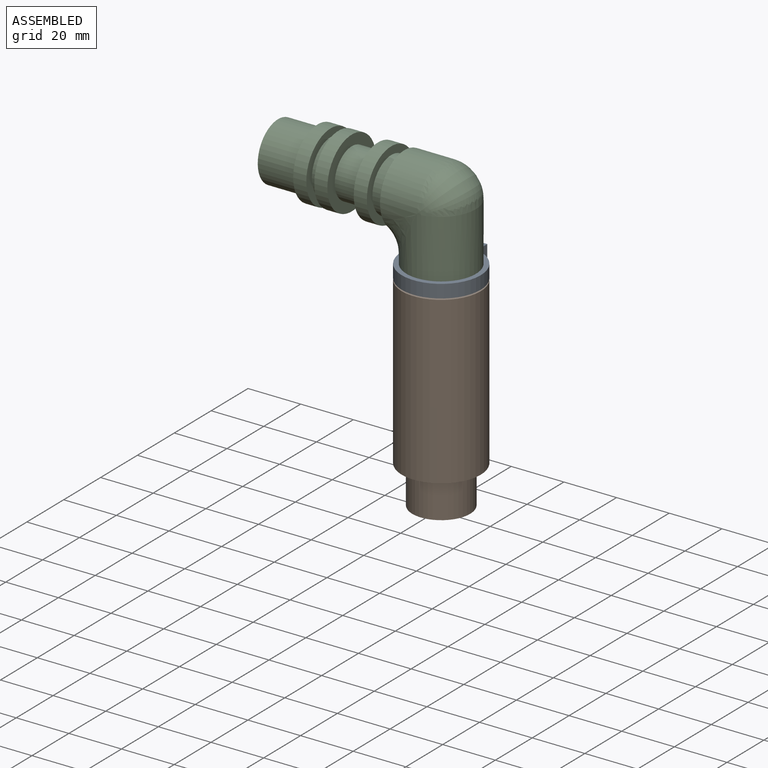
[diagram: assembled view]
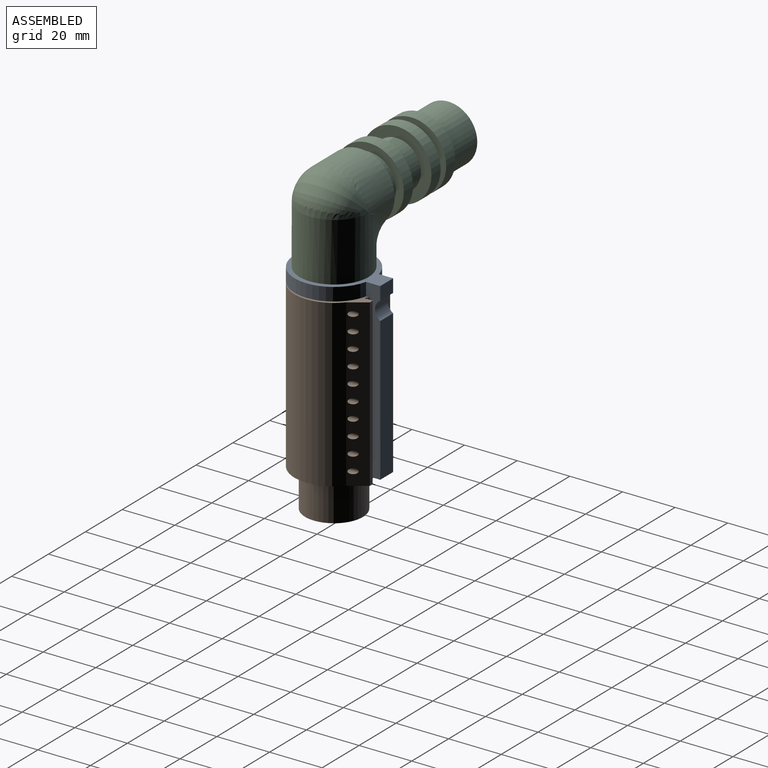
[diagram: assembled view, second angle]
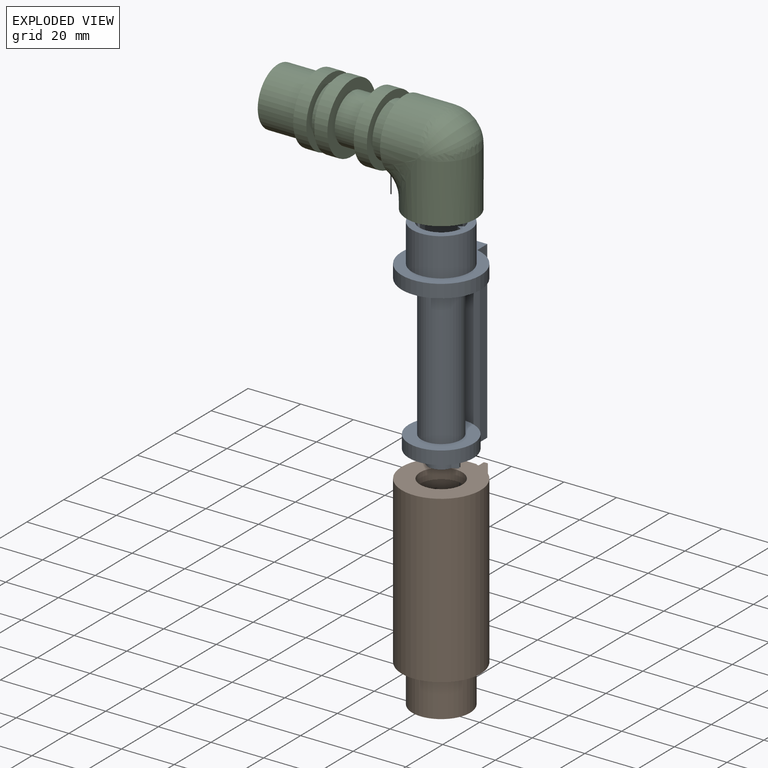
[diagram: exploded view]
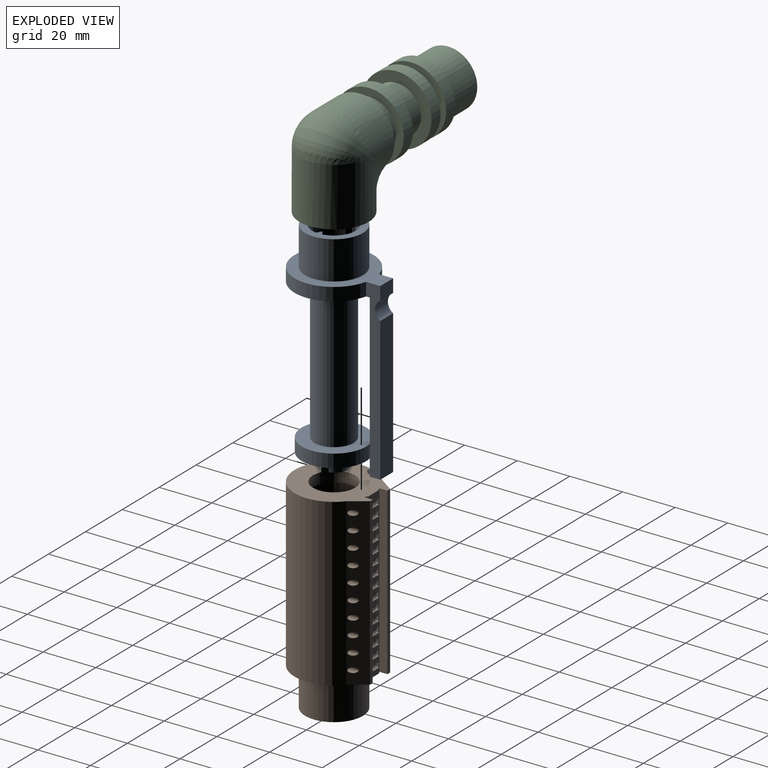
[diagram: exploded view, second angle]
ASSEMBLY  parts=3 mates=2
PART A: 38 faces, bbox 30x35x83 mm
  f0: plane 16.5x16.35mm, normal (0,0,1), area 130.8mm2, adj f20,f30,f31,f32,f33,f34,f35
  f1: plane 54.5x7mm, normal (0,1,0), area 381.5mm2, adj f2,f3,f22,f29
  f2: plane 66.5x5.41mm, normal (-1,0,0), area 263.2mm2, adj f1,f4,f5,f6,f18,f21,f22,f29
  f3: plane 66.5x5.41mm, normal (1,0,0), area 263.2mm2, adj f1,f4,f5,f6,f18,f21,f22,f29
  f4: plane 61.5x7mm, normal (0,-1,0), area 416.5mm2, adj f2,f3,f5,f22,f23,f26,f27
  f5: plane 31x30mm, normal (0,0,-1), area 538.1mm2, adj f2,f3,f4,f6,f17
  f6: cylinder r=15mm len=30mm, axis (0,0,-1), area 435.9mm2, adj f2,f3,f5,f18
  f7: cylinder r=4.88mm len=9.42mm, axis (0,0,-1), area 63.9mm2, adj f8,f12,f13,f14
  f8: plane 5x2.16mm, normal (-0.5,0.87,0), area 12.5mm2, adj f7,f9,f13,f14
  f9: plane 5x2.16mm, normal (-0.5,-0.87,0), area 12.5mm2, adj f8,f10,f13,f14
  f10: cylinder r=4.88mm len=9.42mm, axis (0,0,-1), area 63.9mm2, adj f9,f11,f13,f14
  f11: plane 5x2.16mm, normal (0.5,-0.87,0), area 12.5mm2, adj f10,f12,f13,f14
  f12: plane 5x2.16mm, normal (0.5,0.87,0), area 12.5mm2, adj f7,f11,f13,f14
  f13: plane 13.75x9.75mm, normal (0,0,-1), area 63.6mm2, adj f7,f8,f9,f10,f11,f12,f28
  f14: plane 24.5x24.5mm, normal (0,0,-1), area 391.9mm2, adj f7,f8,f9,f10,f11,f12,f15
  f15: cylinder r=12.25mm len=24.5mm, axis (0,0,-1), area 384.8mm2, adj f14,f16
  f16: plane 24.5x24.5mm, normal (0,0,1), area 294.7mm2, adj f15,f17
  f17: cylinder r=7.5mm len=53.5mm, axis (0,0,-1), area 2521.1mm2, adj f5,f16
  f18: plane 35x30mm, normal (0,0,1), area 362.7mm2, adj f2,f3,f6,f21,f36
  f19: plane 10x10mm, normal (0,0,1), area 62.6mm2, adj f20,f28
  f20: cylinder r=5mm len=58.5mm, axis (0,0,-1), area 1837.8mm2, adj f0,f19
  f21: plane 7x5mm, normal (0,1,0), area 35mm2, adj f2,f3,f18,f29
  f22: plane 7x4mm, normal (0,0,-1), area 28mm2, adj f1,f2,f3,f4,f25
  f23: plane 5x1mm, normal (0,-0.74,0.67), area 6.7mm2, adj f4,f24,f26,f27
  f24: extruded ~5x1.6mm, area 12.6mm2, adj f23,f25,f26,f27
  f25: plane 5x0.9mm, normal (0,-0.22,-0.98), area 4.6mm2, adj f22,f24,f26,f27
  f26: plane 2.8x1.94mm, normal (1,0,0), area 3mm2, adj f4,f23,f24,f25
  f27: plane 2.8x1.94mm, normal (-1,0,0), area 3mm2, adj f4,f23,f24,f25
  f28: cylinder r=2.25mm len=10mm, axis (0,0,1), area 141.4mm2, adj f13,f19
  f29: cylinder r=4.06mm len=7mm, axis (-1,0,0), area 59.1mm2, adj f1,f2,f3,f21
  f30: plane 14.5x1.93mm, normal (0.5,0.87,0), area 32.2mm2, adj f0,f31,f35,f37
  f31: cylinder r=8.25mm len=16.35mm, axis (0,0,-1), area 343.5mm2, adj f0,f30,f32,f37
  f32: plane 14.5x1.93mm, normal (-0.5,0.87,0), area 32.2mm2, adj f0,f31,f33,f37
  f33: plane 14.5x1.93mm, normal (-0.5,-0.87,0), area 32.2mm2, adj f0,f32,f34,f37
  f34: cylinder r=8.25mm len=16.35mm, axis (0,0,-1), area 343.5mm2, adj f0,f33,f35,f37
  f35: plane 14.5x1.93mm, normal (0.5,-0.87,0), area 32.2mm2, adj f0,f30,f34,f37
  f36: cylinder r=11mm len=22mm, axis (0,0,-1), area 1002.2mm2, adj f18,f37
  f37: plane 22x22mm, normal (0,0,1), area 170.8mm2, adj f30,f31,f32,f33,f34,f35,f36
PART B: 146 faces, bbox 30.6x33.1x78.1 mm
  f0: plane 16.25x7.97mm, normal (0,0,-1), area 61.9mm2, adj f55,f56,f57,f118,f119,f120
  f1: plane 16.25x7.97mm, normal (0,0,-1), area 61.9mm2, adj f54,f58,f59,f116,f117,f121
  f2: cylinder r=15mm len=63mm, axis (0,0,-1), area 4603.7mm2, adj f60,f61,f111,f115
  f3: cylinder r=15mm len=63mm, axis (0,0,-1), area 64.8mm2, adj f35,f36,f37,f38,f39,f40,f41,f42
  f4: plane 6x2mm, normal (0,1,0), area 12mm2, adj f20,f35,f60,f109
  f5: plane 6x2mm, normal (0,1,0), area 12mm2, adj f19,f36,f106,f109
  f6: plane 6x2mm, normal (0,1,0), area 12mm2, adj f21,f37,f103,f106
  f7: plane 6x2mm, normal (0,1,0), area 12mm2, adj f22,f38,f100,f103
  f8: plane 6x2mm, normal (0,1,0), area 12mm2, adj f23,f39,f97,f100
  f9: plane 6x2mm, normal (0,1,0), area 12mm2, adj f24,f40,f94,f97
  f10: plane 6x2mm, normal (0,1,0), area 12mm2, adj f25,f41,f91,f94
  f11: plane 6x2mm, normal (0,1,0), area 12mm2, adj f26,f42,f88,f91
  f12: plane 6x2mm, normal (0,1,0), area 12mm2, adj f27,f43,f85,f88
  f13: plane 6x2mm, normal (0,1,0), area 12mm2, adj f28,f44,f82,f85
  f14: plane 6x2mm, normal (0,1,0), area 12mm2, adj f29,f45,f79,f82
  f15: plane 6x2mm, normal (0,1,0), area 12mm2, adj f30,f46,f76,f79
  f16: plane 6x2mm, normal (0,1,0), area 12mm2, adj f31,f47,f73,f76
  f17: plane 6x2mm, normal (0,1,0), area 12mm2, adj f32,f48,f70,f73
  f18: plane 6x2mm, normal (0,1,0), area 12mm2, adj f33,f49,f67,f70
  f19: plane 2.09x0.3mm, normal (1,0,0), area 0.6mm2, adj f5,f51,f106,f109
  f20: plane 2.05x0.3mm, normal (1,0,0), area 0.6mm2, adj f4,f51,f60,f109
  f21: plane 2.09x0.3mm, normal (1,0,0), area 0.6mm2, adj f6,f51,f103,f106
  f22: plane 2.09x0.3mm, normal (1,0,0), area 0.6mm2, adj f7,f51,f100,f103
  f23: plane 2.09x0.3mm, normal (1,0,0), area 0.6mm2, adj f8,f51,f97,f100
  f24: plane 2.09x0.3mm, normal (1,0,0), area 0.6mm2, adj f9,f51,f94,f97
  f25: plane 2.09x0.3mm, normal (1,0,0), area 0.6mm2, adj f10,f51,f91,f94
  f26: plane 2.09x0.3mm, normal (1,0,0), area 0.6mm2, adj f11,f51,f88,f91
  f27: plane 2.09x0.3mm, normal (1,0,0), area 0.6mm2, adj f12,f51,f85,f88
  f28: plane 2.09x0.3mm, normal (1,0,0), area 0.6mm2, adj f13,f51,f82,f85
  f29: plane 2.09x0.3mm, normal (1,0,0), area 0.6mm2, adj f14,f51,f79,f82
  f30: plane 2.09x0.3mm, normal (1,0,0), area 0.6mm2, adj f15,f51,f76,f79
  f31: plane 2.09x0.3mm, normal (1,0,0), area 0.6mm2, adj f16,f51,f73,f76
  f32: plane 2.09x0.3mm, normal (1,0,0), area 0.6mm2, adj f17,f51,f70,f73
  f33: plane 2.09x0.3mm, normal (1,0,0), area 0.6mm2, adj f18,f51,f67,f70
  f34: plane 3.05x0.3mm, normal (1,0,0), area 0.9mm2, adj f51,f61,f64,f67
  f35: plane 2.05x0.3mm, normal (-1,0,0), area 0.6mm2, adj f3,f4,f60,f109
  f36: plane 2.09x0.3mm, normal (-1,0,0), area 0.6mm2, adj f3,f5,f106,f109
  f37: plane 2.09x0.3mm, normal (-1,0,0), area 0.6mm2, adj f3,f6,f103,f106
  f38: plane 2.09x0.3mm, normal (-1,0,0), area 0.6mm2, adj f3,f7,f100,f103
  f39: plane 2.09x0.3mm, normal (-1,0,0), area 0.6mm2, adj f3,f8,f97,f100
  f40: plane 2.09x0.3mm, normal (-1,0,0), area 0.6mm2, adj f3,f9,f94,f97
  f41: plane 2.09x0.3mm, normal (-1,0,0), area 0.6mm2, adj f3,f10,f91,f94
  f42: plane 2.09x0.3mm, normal (-1,0,0), area 0.6mm2, adj f3,f11,f88,f91
  f43: plane 2.09x0.3mm, normal (-1,0,0), area 0.6mm2, adj f3,f12,f85,f88
  f44: plane 2.09x0.3mm, normal (-1,0,0), area 0.6mm2, adj f3,f13,f82,f85
  f45: plane 2.09x0.3mm, normal (-1,0,0), area 0.6mm2, adj f3,f14,f79,f82
  f46: plane 2.09x0.3mm, normal (-1,0,0), area 0.6mm2, adj f3,f15,f76,f79
  f47: plane 2.09x0.3mm, normal (-1,0,0), area 0.6mm2, adj f3,f16,f73,f76
  f48: plane 2.09x0.3mm, normal (-1,0,0), area 0.6mm2, adj f3,f17,f70,f73
  f49: plane 2.09x0.3mm, normal (-1,0,0), area 0.6mm2, adj f3,f18,f67,f70
  f50: plane 3.05x0.3mm, normal (-1,0,0), area 0.9mm2, adj f3,f61,f64,f67
  f51: cylinder r=15mm len=63mm, axis (0,0,-1), area 64.8mm2, adj f19,f20,f21,f22,f23,f24,f25,f26
  f52: cylinder r=12.5mm len=56mm, axis (0,0,-1), area 4316.5mm2, adj f53,f63,f125,f126,f127,f128,f129,f130
  f53: plane 25x25mm, normal (0,0,1), area 407.5mm2, adj f52,f54,f55,f56,f57,f58,f59
  f54: plane 17.5x2.16mm, normal (-0.5,-0.87,0), area 14.2mm2, adj f1,f53,f55,f59,f121,f123
  f55: plane 17.5x2.16mm, normal (-0.5,0.87,0), area 14.2mm2, adj f0,f53,f54,f56,f120,f123
  f56: cylinder r=5mm len=9.68mm, axis (0,0,-1), area 39.6mm2, adj f0,f53,f55,f57
  f57: plane 17.5x2.16mm, normal (0.5,0.87,0), area 14.2mm2, adj f0,f53,f56,f58,f118,f123
  f58: plane 17.5x2.16mm, normal (0.5,-0.87,0), area 14.2mm2, adj f1,f53,f57,f59,f117,f123
  f59: cylinder r=5mm len=9.68mm, axis (0,0,-1), area 39.6mm2, adj f1,f53,f54,f58
  f60: plane 32.46x30mm, normal (0,0,-1), area 350.5mm2, adj f2,f3,f4,f20,f35,f51,f110,f111
  f61: plane 32.46x30mm, normal (0,0,1), area 529.6mm2, adj f2,f3,f34,f50,f51,f62,f64,f110
  f62: cylinder r=8mm len=16mm, axis (0,0,1), area 201.1mm2, adj f61,f63
  f63: plane 25x25mm, normal (0,0,-1), area 289.8mm2, adj f52,f62,f124,f136
  f64: plane 6x3mm, normal (0,1,0), area 18mm2, adj f34,f50,f61,f67
  f65: plane 1.91x0.7mm, normal (-1,0,0), area 1mm2, adj f51,f67
  f66: plane 1.91x0.7mm, normal (1,0,0), area 1mm2, adj f3,f67
  f67: cylinder r=1mm len=6mm, axis (-1,0,0), area 18.8mm2, adj f18,f33,f34,f49,f50,f64,f65,f66
  f68: plane 1.91x0.7mm, normal (-1,0,0), area 1mm2, adj f51,f70
  f69: plane 1.91x0.7mm, normal (1,0,0), area 1mm2, adj f3,f70
  f70: cylinder r=1mm len=6mm, axis (-1,0,0), area 18.8mm2, adj f17,f18,f32,f33,f48,f49,f68,f69
  f71: plane 1.91x0.7mm, normal (-1,0,0), area 1mm2, adj f51,f73
  f72: plane 1.91x0.7mm, normal (1,0,0), area 1mm2, adj f3,f73
  f73: cylinder r=1mm len=6mm, axis (-1,0,0), area 18.8mm2, adj f16,f17,f31,f32,f47,f48,f71,f72
  f74: plane 1.91x0.7mm, normal (-1,0,0), area 1mm2, adj f51,f76
  f75: plane 1.91x0.7mm, normal (1,0,0), area 1mm2, adj f3,f76
  f76: cylinder r=1mm len=6mm, axis (-1,0,0), area 18.8mm2, adj f15,f16,f30,f31,f46,f47,f74,f75
  f77: plane 1.91x0.7mm, normal (-1,0,0), area 1mm2, adj f51,f79
  f78: plane 1.91x0.7mm, normal (1,0,0), area 1mm2, adj f3,f79
  f79: cylinder r=1mm len=6mm, axis (-1,0,0), area 18.8mm2, adj f14,f15,f29,f30,f45,f46,f77,f78
  f80: plane 1.91x0.7mm, normal (-1,0,0), area 1mm2, adj f51,f82
  f81: plane 1.91x0.7mm, normal (1,0,0), area 1mm2, adj f3,f82
  f82: cylinder r=1mm len=6mm, axis (-1,0,0), area 18.8mm2, adj f13,f14,f28,f29,f44,f45,f80,f81
  f83: plane 1.91x0.7mm, normal (-1,0,0), area 1mm2, adj f51,f85
  f84: plane 1.91x0.7mm, normal (1,0,0), area 1mm2, adj f3,f85
  f85: cylinder r=1mm len=6mm, axis (-1,0,0), area 18.8mm2, adj f12,f13,f27,f28,f43,f44,f83,f84
  f86: plane 1.91x0.7mm, normal (-1,0,0), area 1mm2, adj f51,f88
  f87: plane 1.91x0.7mm, normal (1,0,0), area 1mm2, adj f3,f88
  f88: cylinder r=1mm len=6mm, axis (-1,0,0), area 18.8mm2, adj f11,f12,f26,f27,f42,f43,f86,f87
  f89: plane 1.91x0.7mm, normal (-1,0,0), area 1mm2, adj f51,f91
  f90: plane 1.91x0.7mm, normal (1,0,0), area 1mm2, adj f3,f91
  f91: cylinder r=1mm len=6mm, axis (-1,0,0), area 18.8mm2, adj f10,f11,f25,f26,f41,f42,f89,f90
  f92: plane 1.91x0.7mm, normal (-1,0,0), area 1mm2, adj f51,f94
  f93: plane 1.91x0.7mm, normal (1,0,0), area 1mm2, adj f3,f94
  f94: cylinder r=1mm len=6mm, axis (-1,0,0), area 18.8mm2, adj f9,f10,f24,f25,f40,f41,f92,f93
  f95: plane 1.91x0.7mm, normal (-1,0,0), area 1mm2, adj f51,f97
  f96: plane 1.91x0.7mm, normal (1,0,0), area 1mm2, adj f3,f97
  f97: cylinder r=1mm len=6mm, axis (-1,0,0), area 18.8mm2, adj f8,f9,f23,f24,f39,f40,f95,f96
  f98: plane 1.91x0.7mm, normal (-1,0,0), area 1mm2, adj f51,f100
  f99: plane 1.91x0.7mm, normal (1,0,0), area 1mm2, adj f3,f100
  f100: cylinder r=1mm len=6mm, axis (-1,0,0), area 18.8mm2, adj f7,f8,f22,f23,f38,f39,f98,f99
  f101: plane 1.91x0.7mm, normal (-1,0,0), area 1mm2, adj f51,f103
  f102: plane 1.91x0.7mm, normal (1,0,0), area 1mm2, adj f3,f103
  f103: cylinder r=1mm len=6mm, axis (-1,0,0), area 18.8mm2, adj f6,f7,f21,f22,f37,f38,f101,f102
  f104: plane 1.91x0.7mm, normal (-1,0,0), area 1mm2, adj f51,f106
  f105: plane 1.91x0.7mm, normal (1,0,0), area 1mm2, adj f3,f106
  f106: cylinder r=1mm len=6mm, axis (-1,0,0), area 18.8mm2, adj f5,f6,f19,f21,f36,f37,f104,f105
  f107: plane 1.91x0.7mm, normal (-1,0,0), area 1mm2, adj f51,f109
  f108: plane 1.91x0.7mm, normal (1,0,0), area 1mm2, adj f3,f109
  f109: cylinder r=1mm len=6mm, axis (-1,0,0), area 18.8mm2, adj f4,f5,f19,f20,f35,f36,f107,f108
  f110: plane 63x3mm, normal (1,0,0), area 189mm2, adj f3,f60,f61,f112
  f111: plane 63x6.04mm, normal (-0.82,0.57,0), area 409.8mm2, adj f2,f60,f61,f112,f135,f137,f138,f139
  f112: plane 63x1.5mm, normal (0,1,0), area 94.5mm2, adj f60,f61,f110,f111
  f113: plane 63x3mm, normal (-1,0,0), area 189mm2, adj f51,f60,f61,f114
  f114: plane 63x1.5mm, normal (0,1,0), area 94.5mm2, adj f60,f61,f113,f115
  f115: plane 63.6x6.64mm, normal (0.82,0.57,0), area 409.8mm2, adj f2,f60,f61,f114,f125,f126,f127,f128
  f116: cylinder r=8.2mm len=16.25mm, axis (0,0,1), area 341.2mm2, adj f1,f117,f121,f123
  f117: plane 14.5x1.52mm, normal (0.5,0.87,0), area 25.5mm2, adj f1,f58,f116,f123
  f118: plane 14.5x1.52mm, normal (0.5,-0.87,0), area 25.5mm2, adj f0,f57,f119,f123
  f119: cylinder r=8.2mm len=16.25mm, axis (0,0,1), area 341.2mm2, adj f0,f118,f120,f123
  f120: plane 14.5x1.52mm, normal (-0.5,-0.87,0), area 25.5mm2, adj f0,f55,f119,f123
  f121: plane 14.5x1.52mm, normal (-0.5,0.87,0), area 25.5mm2, adj f1,f54,f116,f123
  f122: cylinder r=11mm len=22mm, axis (0,0,1), area 1002.2mm2, adj f60,f123
  f123: plane 22x22mm, normal (0,0,-1), area 173mm2, adj f54,f55,f57,f58,f116,f117,f118,f119
  f124: cylinder r=12.5mm len=2mm, axis (0,0,-1), area 2.2mm2, adj f63,f125
  f125: cylinder r=1mm len=6.48mm, axis (0,1,0), area 25.8mm2, adj f52,f115,f124
  f126: cylinder r=1mm len=6.48mm, axis (0,1,0), area 25.2mm2, adj f52,f115
  f127: cylinder r=1mm len=6.48mm, axis (0,1,0), area 25.2mm2, adj f52,f115
  f128: cylinder r=1mm len=6.48mm, axis (0,1,0), area 25.2mm2, adj f52,f115
  f129: cylinder r=1mm len=6.48mm, axis (0,1,0), area 25.2mm2, adj f52,f115
  f130: cylinder r=1mm len=6.48mm, axis (0,1,0), area 25.2mm2, adj f52,f115
  f131: cylinder r=1mm len=6.48mm, axis (0,1,0), area 25.2mm2, adj f52,f115
  f132: cylinder r=1mm len=6.48mm, axis (0,1,0), area 25.2mm2, adj f52,f115
  f133: cylinder r=1mm len=6.48mm, axis (0,1,0), area 25.2mm2, adj f52,f115
  f134: cylinder r=1mm len=6.48mm, axis (0,1,0), area 25.2mm2, adj f52,f115
  f135: cylinder r=1mm len=6.48mm, axis (0,1,0), area 25.5mm2, adj f52,f111,f136
  f136: cylinder r=12.5mm len=2mm, axis (0,0,-1), area 2.2mm2, adj f63,f135
  f137: cylinder r=1mm len=6.48mm, axis (0,1,0), area 25.5mm2, adj f52,f111
  f138: cylinder r=1mm len=6.48mm, axis (0,1,0), area 25.5mm2, adj f52,f111
  f139: cylinder r=1mm len=6.48mm, axis (0,1,0), area 25.5mm2, adj f52,f111
  f140: cylinder r=1mm len=6.48mm, axis (0,1,0), area 25.5mm2, adj f52,f111
  f141: cylinder r=1mm len=6.48mm, axis (0,1,0), area 25.5mm2, adj f52,f111
  f142: cylinder r=1mm len=6.48mm, axis (0,1,0), area 25.5mm2, adj f52,f111
  f143: cylinder r=1mm len=6.48mm, axis (0,1,0), area 25.5mm2, adj f52,f111
  f144: cylinder r=1mm len=6.48mm, axis (0,1,0), area 25.5mm2, adj f52,f111
  f145: cylinder r=1mm len=6.48mm, axis (0,1,0), area 25.5mm2, adj f52,f111
PART C: 40 faces, bbox 35.2x75.2x26.4 mm
  f0: plane 16x15.85mm, normal (1,0,0), area 118mm2, adj f27,f28,f29,f30,f31,f32,f33
  f1: plane 16.5x16.35mm, normal (0,-1,0), area 130.8mm2, adj f2,f6,f7,f8,f9,f10,f11
  f2: cylinder r=5mm len=52mm, axis (0,1,0), area 1471.2mm2, adj f1,f27
  f3: plane 26.4x26.4mm, normal (0,-1,0), area 167.3mm2, adj f5,f12
  f4: plane 26.4x26.4mm, normal (0,1,0), area 220.5mm2, adj f5,f14
  f5: cylinder r=13.2mm len=26.4mm, axis (0,1,0), area 414.7mm2, adj f3,f4
  f6: cylinder r=8.25mm len=16.35mm, axis (0,1,0), area 355.3mm2, adj f1,f7,f11,f13
  f7: plane 15x1.93mm, normal (0.5,0,-0.87), area 33.3mm2, adj f1,f6,f8,f13
  f8: plane 15x1.93mm, normal (0.5,0,0.87), area 33.3mm2, adj f1,f7,f9,f13
  f9: cylinder r=8.25mm len=16.35mm, axis (0,1,0), area 355.3mm2, adj f1,f8,f10,f13
  f10: plane 15x1.93mm, normal (-0.5,0,0.87), area 33.3mm2, adj f1,f9,f11,f13
  f11: plane 15x1.93mm, normal (-0.5,0,-0.87), area 33.3mm2, adj f1,f6,f10,f13
  f12: cylinder r=11mm len=22mm, axis (0,1,0), area 1036.7mm2, adj f3,f13
  f13: plane 22x22mm, normal (0,-1,0), area 170.8mm2, adj f6,f7,f8,f9,f10,f11,f12
  f14: cylinder r=10.2mm len=20.4mm, axis (0,1,0), area 192.3mm2, adj f4,f16
  f15: cylinder r=13.2mm len=26.4mm, axis (0,1,0), area 414.7mm2, adj f16,f17
  f16: plane 26.4x26.4mm, normal (0,-1,0), area 220.5mm2, adj f14,f15
  f17: plane 26.4x26.4mm, normal (0,1,0), area 281.5mm2, adj f15,f18
  f18: cylinder r=9.2mm len=18.4mm, axis (0,1,0), area 578.1mm2, adj f17,f19
  f19: plane 26.4x26.4mm, normal (0,-1,0), area 281.5mm2, adj f18,f21
  f20: plane 26.4x26.4mm, normal (0,1,0), area 220.5mm2, adj f21,f22
  f21: cylinder r=13.2mm len=26.4mm, axis (0,1,0), area 414.7mm2, adj f19,f20
  f22: cylinder r=10.2mm len=20.4mm, axis (0,1,0), area 320.4mm2, adj f20,f26
  f23: cylinder r=13.2mm len=26.4mm, axis (1,0,0), area 1248mm2, adj f25,f36,f37,f38,f39
  f24: cylinder r=13.2mm len=26.4mm, axis (0,1,0), area 684.7mm2, adj f26,f36,f38,f39
  f25: plane 26.4x26.4mm, normal (1,0,0), area 153.3mm2, adj f23,f34
  f26: plane 26.4x26.4mm, normal (0,-1,0), area 220.5mm2, adj f22,f24,f37
  f27: cylinder r=5mm len=27mm, axis (1,0,0), area 685.8mm2, adj f0,f2
  f28: cylinder r=8mm len=15.85mm, axis (1,0,0), area 343.6mm2, adj f0,f29,f33,f35
  f29: plane 15x1.92mm, normal (0,-0.5,0.87), area 33.3mm2, adj f0,f28,f30,f35
  f30: plane 15x1.92mm, normal (0,-0.5,-0.87), area 33.3mm2, adj f0,f29,f31,f35
  f31: cylinder r=8mm len=15.85mm, axis (1,0,0), area 343.6mm2, adj f0,f30,f32,f35
  f32: plane 15x1.92mm, normal (0,0.5,-0.87), area 33.3mm2, adj f0,f31,f33,f35
  f33: plane 15x1.92mm, normal (0,0.5,0.87), area 33.3mm2, adj f0,f28,f32,f35
  f34: cylinder r=11.2mm len=22.4mm, axis (1,0,0), area 1055.6mm2, adj f25,f35
  f35: plane 22.4x22.4mm, normal (1,0,0), area 197.5mm2, adj f28,f29,f30,f31,f32,f33,f34
  f36: bspline ~15.27x15.27mm, area 74.4mm2, adj f23,f24,f37
  f37: bspline ~22.9x12.5mm, area 190.8mm2, adj f23,f26,f36,f38
  f38: bspline ~15.27x15.27mm, area 74.4mm2, adj f23,f24,f37
  f39: bspline ~26.4x13.2mm, area 529.7mm2, adj f23,f24
PLACE A t=(-74.71,-39.79,-268.5)mm
PLACE B t=(-74.71,-39.79,-268.5)mm
PLACE C rot(axis=(0.58,0.58,-0.58),120deg) t=(-121.71,-39.79,-178)mm
MATE slider C.f27 <-> A.f20  axis (0,0,-1) through (-74.71,-39.79,-200)mm
MATE fastened A.f28 <-> B.f56  axis (0,0,-1) through (-74.71,-39.79,-268.5)mm
